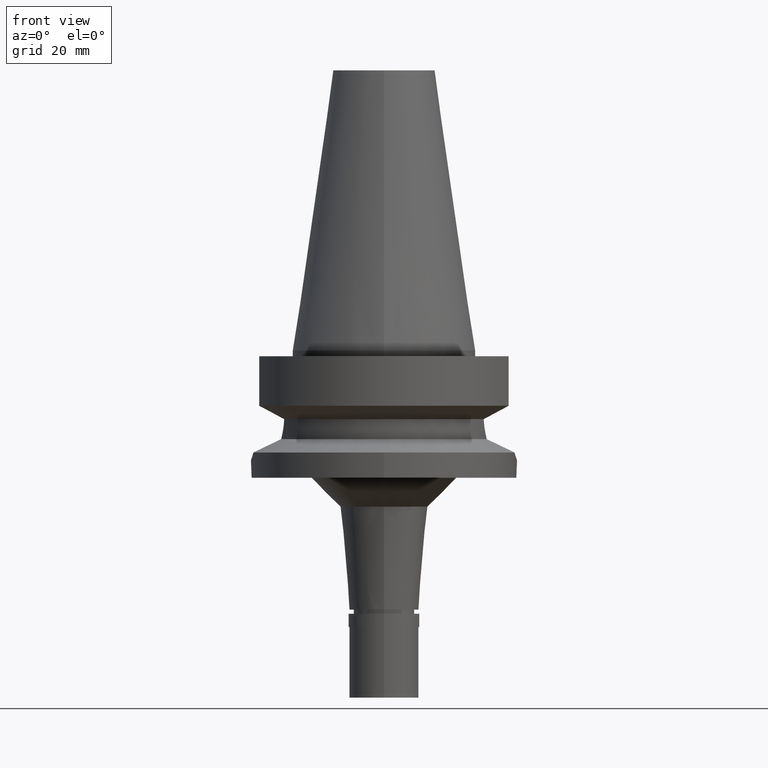
[diagram: clean part render]
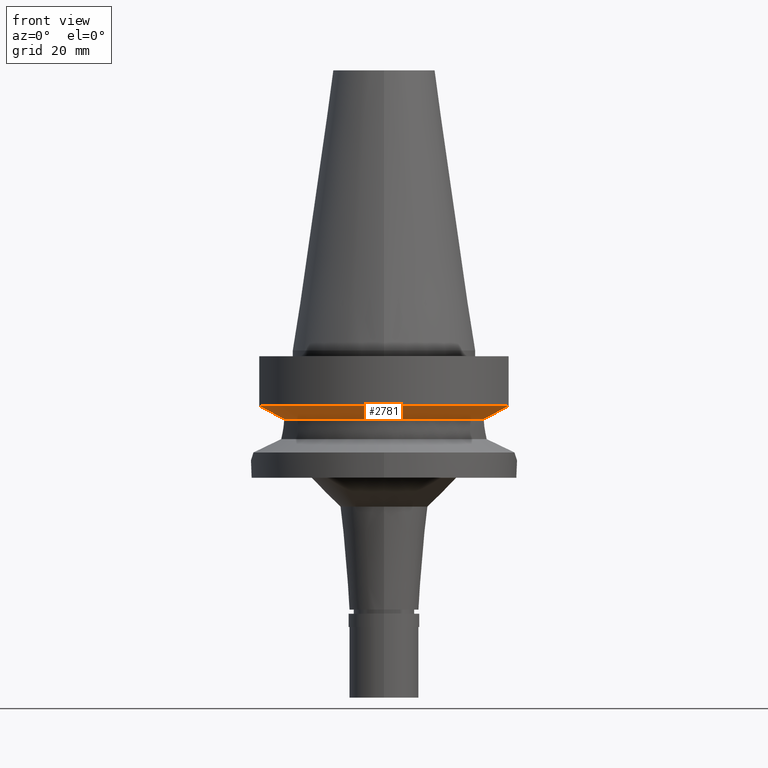
[diagram: same view with one face highlighted and labeled with its STEP entity id]
A machine part, front view. The second image highlights one B-rep face of the part: STEP entity #2781.
In plain terms, the highlighted conical surface has half-angle 60 deg.
Its self-contained STEP definition (entity closure, byte-faithful):
#84 = DIRECTION ( 'NONE',  ( 0.0000000000000000000, -1.000000000000000000, 0.0000000000000000000 ) ) ;
#120 = CARTESIAN_POINT ( 'NONE',  ( 20.64101735201231591, -8.050004185258069711, -10.05624233374762966 ) ) ;
#257 = CARTESIAN_POINT ( 'NONE',  ( 18.30417677519795916, -8.050000009833846448, -11.30245973939780235 ) ) ;
#275 = VERTEX_POINT ( 'NONE', #2748 ) ;
#307 = EDGE_CURVE ( 'NONE', #275, #853, #676, .T. ) ;
#317 = CARTESIAN_POINT ( 'NONE',  ( 18.96736186693999926, -8.050001277873001015, -10.94999977540000025 ) ) ;
#336 = B_SPLINE_CURVE_WITH_KNOTS ( 'NONE', 3,
 ( #2520, #2565, #2309, #2577 ),
 .UNSPECIFIED., .F., .F.,
 ( 4, 4 ),
 ( 0.0000000000000000000, 1.000000000000000000 ),
 .UNSPECIFIED. ) ;
#359 = DIRECTION ( 'NONE',  ( 0.0000000000000000000, 0.0000000000000000000, 1.000000000000000000 ) ) ;
#405 = FACE_OUTER_BOUND ( 'NONE', #2736, .T. ) ;
#456 = CARTESIAN_POINT ( 'NONE',  ( 17.23531135313000107, -7.996501749111999402, -11.87660739354000050 ) ) ;
#468 = CARTESIAN_POINT ( 'NONE',  ( -21.54524325238000060, -8.049999577366000025, -9.567211146628999074 ) ) ;
#524 = VERTEX_POINT ( 'NONE', #1670 ) ;
#637 = ORIENTED_EDGE ( 'NONE', *, *, #307, .F. ) ;
#676 = CIRCLE ( 'NONE', #1836, 23.00000000000000000 ) ;
#736 = ORIENTED_EDGE ( 'NONE', *, *, #1201, .F. ) ;
#809 = B_SPLINE_CURVE_WITH_KNOTS ( 'NONE', 3,
 ( #317, #2193, #120, #2376 ),
 .UNSPECIFIED., .F., .F.,
 ( 4, 4 ),
 ( 0.0000000000000000000, 1.000000000000000000 ),
 .UNSPECIFIED. ) ;
#853 = VERTEX_POINT ( 'NONE', #2211 ) ;
#902 = ORIENTED_EDGE ( 'NONE', *, *, #2481, .T. ) ;
#904 = B_SPLINE_CURVE_WITH_KNOTS ( 'NONE', 3,
 ( #468, #2065, #1847, #1560 ),
 .UNSPECIFIED., .F., .F.,
 ( 4, 4 ),
 ( 0.0000000000000000000, 1.000000000000000000 ),
 .UNSPECIFIED. ) ;
#962 = CIRCLE ( 'NONE', #1062, 19.00000000000000000 ) ;
#1062 = AXIS2_PLACEMENT_3D ( 'NONE', #1862, #1645, #2570 ) ;
#1201 = EDGE_CURVE ( 'NONE', #1780, #2437, #962, .T. ) ;
#1242 = CARTESIAN_POINT ( 'NONE',  ( 0.0000000000000000000, 1.093341284896999988E-14, -9.567208369710998639 ) ) ;
#1262 = CONICAL_SURFACE ( 'NONE', #2980, 21.00000000000000000, 1.047197551196400456 ) ;
#1347 = CARTESIAN_POINT ( 'NONE',  ( 0.0000000000000000000, 1.093341284896999988E-14, -10.72190890808999875 ) ) ;
#1435 = EDGE_CURVE ( 'NONE', #1545, #853, #809, .T. ) ;
#1545 = VERTEX_POINT ( 'NONE', #2266 ) ;
#1559 = ORIENTED_EDGE ( 'NONE', *, *, #1792, .F. ) ;
#1560 = CARTESIAN_POINT ( 'NONE',  ( -18.96738966519000158, -8.049994318072998922, -10.95000099924999937 ) ) ;
#1641 = CARTESIAN_POINT ( 'NONE',  ( 17.23531135313000107, -7.996501749111999402, -11.87660739354000050 ) ) ;
#1645 = DIRECTION ( 'NONE',  ( 0.0000000000000000000, 0.0000000000000000000, -1.000000000000000000 ) ) ;
#1670 = CARTESIAN_POINT ( 'NONE',  ( -18.96738966519000158, -8.049994318072998922, -10.95000099924999937 ) ) ;
#1742 = DIRECTION ( 'NONE',  ( 0.0000000000000000000, 0.0000000000000000000, 1.000000000000000000 ) ) ;
#1780 = VERTEX_POINT ( 'NONE', #456 ) ;
#1792 = EDGE_CURVE ( 'NONE', #1545, #1780, #2772, .T. ) ;
#1836 = AXIS2_PLACEMENT_3D ( 'NONE', #1242, #359, #84 ) ;
#1847 = CARTESIAN_POINT ( 'NONE',  ( -19.78174442230801944, -8.049991903457389242, -10.51718567404479820 ) ) ;
#1851 = EDGE_CURVE ( 'NONE', #2437, #524, #336, .T. ) ;
#1862 = CARTESIAN_POINT ( 'NONE',  ( 0.0000000000000000000, 1.093341284896999988E-14, -11.87660944646999894 ) ) ;
#2065 = CARTESIAN_POINT ( 'NONE',  ( -20.64098922447006501, -8.049999155425616948, -10.05625859811076062 ) ) ;
#2193 = CARTESIAN_POINT ( 'NONE',  ( 19.78176446227738339, -8.050001299918164932, -10.51717305795229151 ) ) ;
#2211 = CARTESIAN_POINT ( 'NONE',  ( 21.54524309446999908, -8.050000000002000888, -9.567208369710998639 ) ) ;
#2238 = ORIENTED_EDGE ( 'NONE', *, *, #1851, .F. ) ;
#2266 = CARTESIAN_POINT ( 'NONE',  ( 18.96736186693999926, -8.050001277873001015, -10.94999977540000025 ) ) ;
#2309 = CARTESIAN_POINT ( 'NONE',  ( -18.30334760937699201, -8.049999956192326778, -11.30291655530038852 ) ) ;
#2328 = CARTESIAN_POINT ( 'NONE',  ( 18.96736186693999926, -8.050001277873001015, -10.94999977540000025 ) ) ;
#2350 = ORIENTED_EDGE ( 'NONE', *, *, #1435, .T. ) ;
#2376 = CARTESIAN_POINT ( 'NONE',  ( 21.54524309446999908, -8.050000000002000888, -9.567208369710998639 ) ) ;
#2437 = VERTEX_POINT ( 'NONE', #2857 ) ;
#2481 = EDGE_CURVE ( 'NONE', #275, #524, #904, .T. ) ;
#2520 = CARTESIAN_POINT ( 'NONE',  ( -17.23531622822000386, -7.996491147957000223, -11.87660607717000083 ) ) ;
#2565 = CARTESIAN_POINT ( 'NONE',  ( -17.72598979705365707, -8.027133611820948644, -11.61218201620178014 ) ) ;
#2570 = DIRECTION ( 'NONE',  ( 0.0000000000000000000, -1.000000000000000000, 0.0000000000000000000 ) ) ;
#2577 = CARTESIAN_POINT ( 'NONE',  ( -18.96738966519000158, -8.049994318072998922, -10.95000099924999937 ) ) ;
#2736 = EDGE_LOOP ( 'NONE', ( #2238, #736, #1559, #2350, #637, #902 ) ) ;
#2748 = CARTESIAN_POINT ( 'NONE',  ( -21.54524325238000060, -8.049999577366000025, -9.567211146628999074 ) ) ;
#2772 = B_SPLINE_CURVE_WITH_KNOTS ( 'NONE', 3,
 ( #2328, #257, #2796, #1641 ),
 .UNSPECIFIED., .F., .F.,
 ( 4, 4 ),
 ( 0.0000000000000000000, 1.000000000000000000 ),
 .UNSPECIFIED. ) ;
#2781 = ADVANCED_FACE ( 'NONE', ( #405 ), #1262, .T. ) ;
#2796 = CARTESIAN_POINT ( 'NONE',  ( 17.72682660392796095, -8.027186146807153477, -11.61172867117429419 ) ) ;
#2857 = CARTESIAN_POINT ( 'NONE',  ( -17.23531622822000386, -7.996491147957000223, -11.87660607717000083 ) ) ;
#2918 = DIRECTION ( 'NONE',  ( 0.0000000000000000000, 1.000000000000000000, 0.0000000000000000000 ) ) ;
#2980 = AXIS2_PLACEMENT_3D ( 'NONE', #1347, #1742, #2918 ) ;